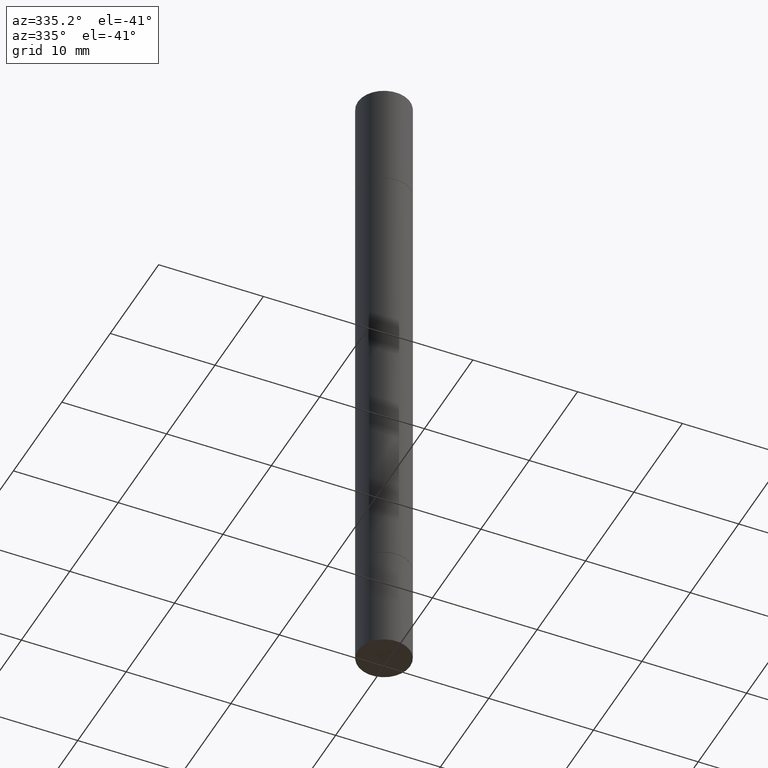
[diagram: clean part render]
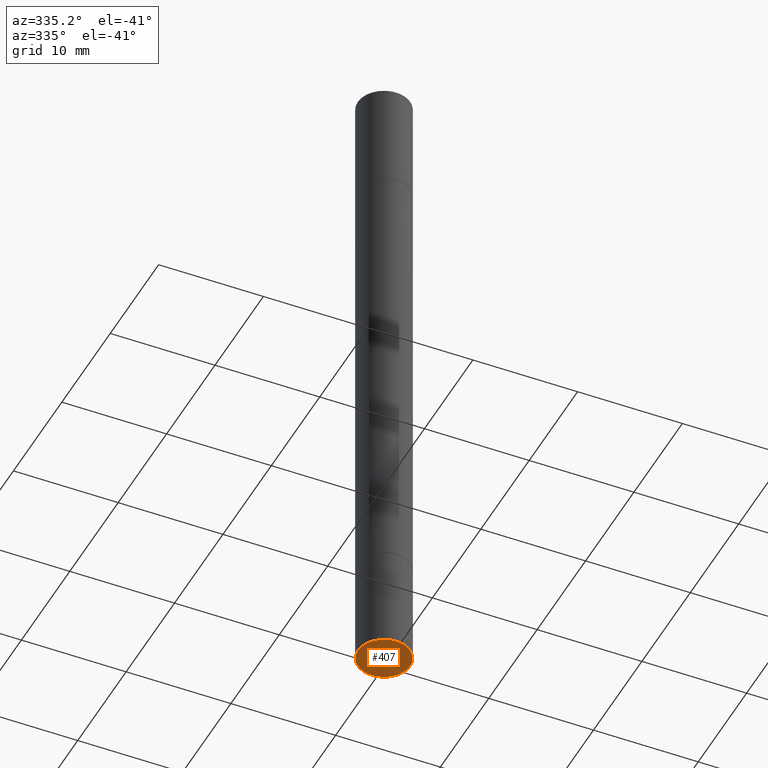
[diagram: same view with one face highlighted and labeled with its STEP entity id]
A machine part, auxiliary view. The second image highlights one B-rep face of the part: STEP entity #407.
In plain terms, the highlighted planar face has unit normal (0, -0, -1).
Its self-contained STEP definition (entity closure, byte-faithful):
#15 = EDGE_LOOP ( 'NONE', ( #493, #344 ) ) ;
#41 = VERTEX_POINT ( 'NONE', #531 ) ;
#102 = FACE_OUTER_BOUND ( 'NONE', #15, .T. ) ;
#117 = DIRECTION ( 'NONE',  ( -2.445468806185136597E-29, 3.491481338843145583E-15, 1.000000000000000000 ) ) ;
#142 = VERTEX_POINT ( 'NONE', #426 ) ;
#164 = CARTESIAN_POINT ( 'NONE',  ( 6.874726756182734996E-16, 0.09844999999999133611, -2.480300000000001059 ) ) ;
#189 = AXIS2_PLACEMENT_3D ( 'NONE', #651, #117, #598 ) ;
#202 = AXIS2_PLACEMENT_3D ( 'NONE', #362, #616, #576 ) ;
#299 = CIRCLE ( 'NONE', #189, 0.09844999999999999585 ) ;
#344 = ORIENTED_EDGE ( 'NONE', *, *, #525, .F. ) ;
#359 = PLANE ( 'NONE',  #397 ) ;
#362 = CARTESIAN_POINT ( 'NONE',  ( 6.065496279980994755E-29, -8.659921164732655335E-15, -2.480300000000000171 ) ) ;
#363 = EDGE_CURVE ( 'NONE', #142, #41, #605, .T. ) ;
#397 = AXIS2_PLACEMENT_3D ( 'NONE', #164, #572, #516 ) ;
#407 = ADVANCED_FACE ( 'NONE', ( #102 ), #359, .T. ) ;
#426 = CARTESIAN_POINT ( 'NONE',  ( 0.09844999999999999585, -9.347393840350869473E-15, -2.480300000000000171 ) ) ;
#493 = ORIENTED_EDGE ( 'NONE', *, *, #363, .F. ) ;
#516 = DIRECTION ( 'NONE',  ( -1.000000000000000000, 6.982962677686265922E-15, -4.876176775795935793E-29 ) ) ;
#525 = EDGE_CURVE ( 'NONE', #41, #142, #299, .T. ) ;
#531 = CARTESIAN_POINT ( 'NONE',  ( -0.09844999999999999585, -7.273093739825564054E-15, -2.480300000000000171 ) ) ;
#572 = DIRECTION ( 'NONE',  ( 2.438088387897960049E-29, -3.491481338843145188E-15, -1.000000000000000000 ) ) ;
#576 = DIRECTION ( 'NONE',  ( 1.000000000000000000, -6.982962677686274599E-15, 0.000000000000000000 ) ) ;
#598 = DIRECTION ( 'NONE',  ( 1.000000000000000000, -6.982962677686274599E-15, 0.000000000000000000 ) ) ;
#605 = CIRCLE ( 'NONE', #202, 0.09844999999999999585 ) ;
#616 = DIRECTION ( 'NONE',  ( -2.445468806185136597E-29, 3.491481338843145583E-15, 1.000000000000000000 ) ) ;
#651 = CARTESIAN_POINT ( 'NONE',  ( 6.065496279980994755E-29, -8.659921164732655335E-15, -2.480300000000000171 ) ) ;